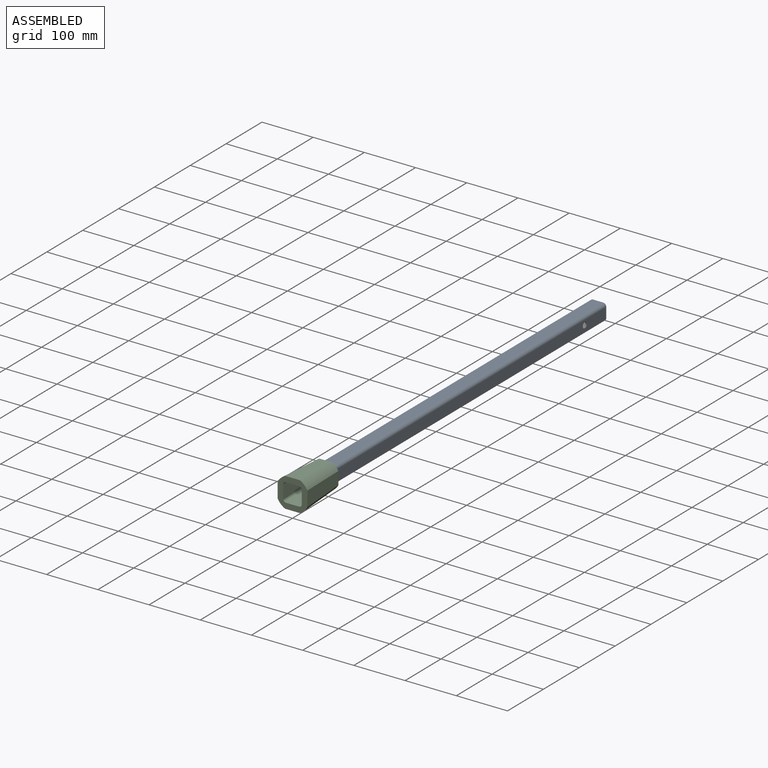
[diagram: assembled view]
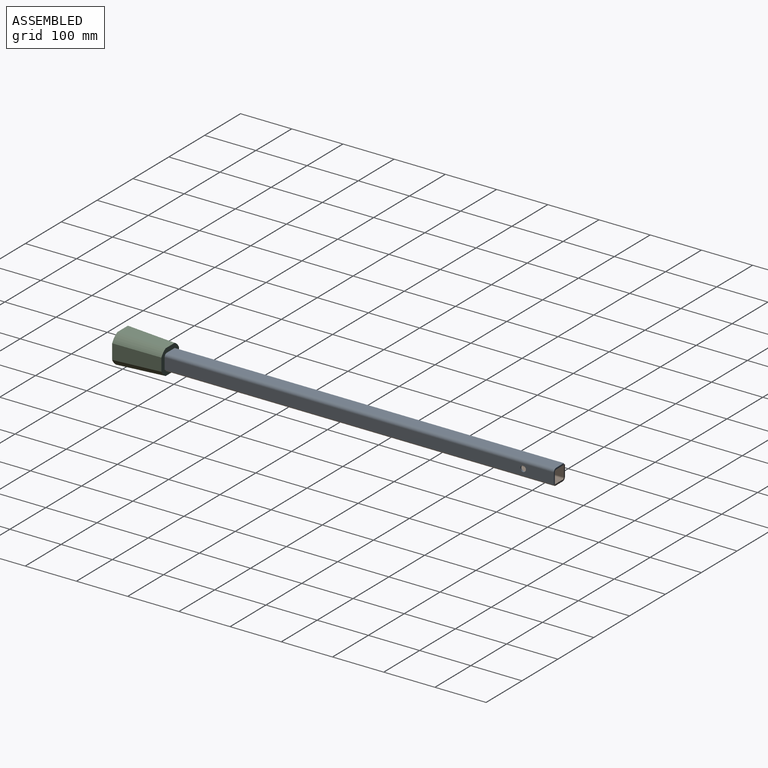
[diagram: assembled view, second angle]
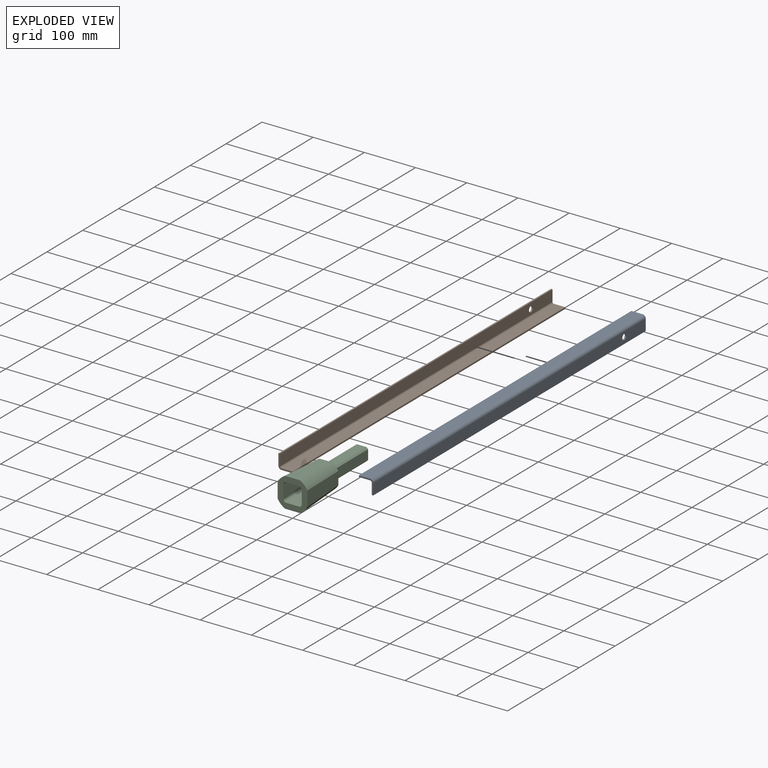
[diagram: exploded view]
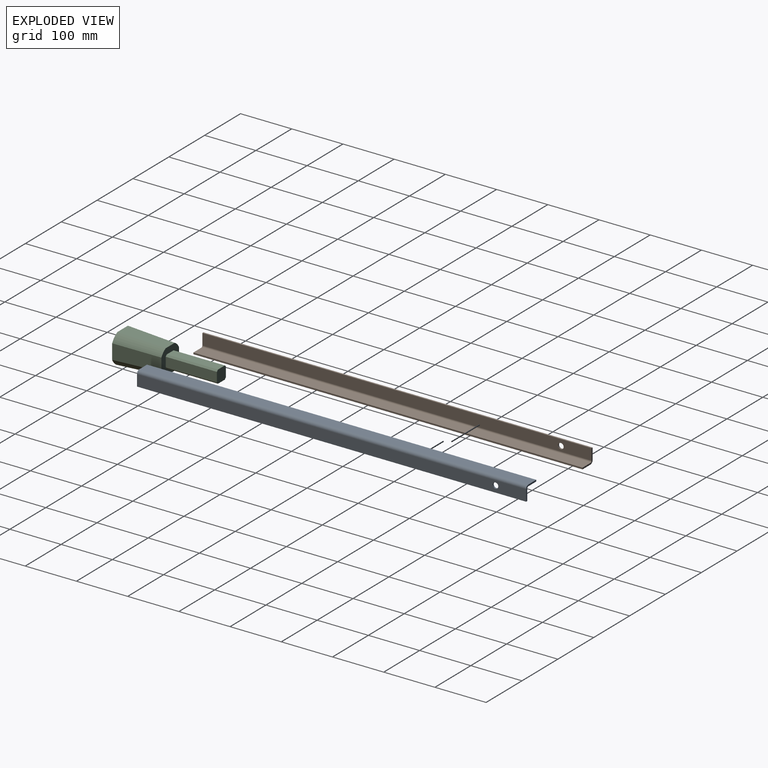
[diagram: exploded view, second angle]
ASSEMBLY  parts=3 mates=6
PART A: 15 faces, bbox 28x760x28 mm
  f0: plane 22x3mm, normal (0,-1,0), area 66mm2, adj f2,f3,f4,f12
  f1: plane 22x3mm, normal (0,1,0), area 66mm2, adj f2,f3,f4,f11
  f2: plane 760x3mm, normal (-1,0,0), area 2280mm2, adj f0,f1,f3,f4
  f3: plane 760x22mm, normal (0,0,1), area 16720mm2, adj f0,f1,f2,f13
  f4: plane 760x22mm, normal (0,0,-1), area 16720mm2, adj f0,f1,f2,f14
  f5: plane 22x3mm, normal (0,-1,0), area 66mm2, adj f6,f9,f10,f12
  f6: plane 760x3mm, normal (0,0,-1), area 2280mm2, adj f5,f7,f9,f10
  f7: plane 22x3mm, normal (0,1,0), area 66mm2, adj f6,f9,f10,f11
  f8: cylinder r=5.5mm len=11mm, axis (1,0,0), area 103.7mm2, adj f9,f10
  f9: plane 760x22mm, normal (1,0,0), area 16625mm2, adj f5,f6,f7,f8,f13
  f10: plane 760x22mm, normal (-1,0,0), area 16625mm2, adj f5,f6,f7,f8,f14
  f11: plane 6x6mm, normal (0,1,0), area 21.2mm2, adj f1,f7,f13,f14
  f12: plane 6x6mm, normal (0,-1,0), area 21.2mm2, adj f0,f5,f13,f14
  f13: cylinder r=6mm len=760mm, axis (0,1,0), area 7162.8mm2, adj f3,f9,f11,f12
  f14: cylinder r=3mm len=760mm, axis (0,1,0), area 3581.4mm2, adj f4,f10,f11,f12
PART B: same geometry as A
PART C: 36 faces, bbox 58.2x193.2x58.2 mm
  f0: plane 49x49mm, normal (0,1,0), area 1566.7mm2, adj f2,f3,f4,f5,f6,f7,f8,f9
  f1: plane 58.21x58.21mm, normal (0,-1,0), area 1766.8mm2, adj f2,f3,f4,f5,f6,f7,f8,f9
  f2: bspline ~93x16.51mm, area 1763.7mm2, adj f0,f1,f3,f9
  f3: plane 93x29.34mm, normal (1,0.05,0), area 2529mm2, adj f0,f1,f2,f4
  f4: bspline ~93x16.51mm, area 1763.7mm2, adj f0,f1,f3,f5
  f5: plane 93x29.34mm, normal (0,0.05,-1), area 2529mm2, adj f0,f1,f4,f6
  f6: bspline ~93x16.51mm, area 1763.7mm2, adj f0,f1,f5,f7
  f7: plane 93x29.34mm, normal (-1,0.05,0), area 2529mm2, adj f0,f1,f6,f8
  f8: bspline ~93x16.51mm, area 1763.7mm2, adj f0,f1,f7,f9
  f9: plane 93x29.34mm, normal (0,0.05,1), area 2529mm2, adj f0,f1,f2,f8
  f10: plane 20.36x20.36mm, normal (0,-1,0), area 411.2mm2, adj f24,f25,f26,f27,f28,f29,f30,f31
  f11: bspline ~77.19x9.82mm, area 608.1mm2, adj f1,f12,f18,f30
  f12: plane 77.19x26mm, normal (-1,-0.06,0), area 1637.7mm2, adj f1,f11,f13,f28
  f13: bspline ~80x31.37mm, area 608.1mm2, adj f1,f12,f14,f26
  f14: plane 77.19x26mm, normal (0,-0.06,1), area 1637.7mm2, adj f1,f13,f15,f24
  f15: bspline ~80x31.37mm, area 608.1mm2, adj f1,f14,f16,f25
  f16: plane 77.19x26mm, normal (1,-0.06,0), area 1637.7mm2, adj f1,f15,f17,f27
  f17: bspline ~80x31.37mm, area 608.1mm2, adj f1,f16,f18,f29
  f18: plane 77.19x26mm, normal (0,-0.06,-1), area 1637.7mm2, adj f1,f11,f17,f31
  f19: plane 100x19mm, normal (1,0,0), area 1900mm2, adj f0,f23,f32,f33
  f20: plane 100x19mm, normal (0,0,1), area 1900mm2, adj f0,f23,f33,f34
  f21: plane 100x19mm, normal (-1,0,0), area 1900mm2, adj f0,f23,f34,f35
  f22: plane 100x19mm, normal (0,0,-1), area 1900mm2, adj f0,f23,f32,f35
  f23: plane 25x25mm, normal (0,1,0), area 607mm2, adj f19,f20,f21,f22,f32,f33,f34,f35
  f24: cylinder r=3mm len=16.35mm, axis (-1,0,0), area 74mm2, adj f10,f14,f25,f26
  f25: bspline ~5.1x5.08mm, area 27.1mm2, adj f10,f15,f24,f27
  f26: bspline ~5.1x5.08mm, area 27.1mm2, adj f10,f13,f24,f28
  f27: cylinder r=3mm len=16.35mm, axis (0,0,-1), area 74mm2, adj f10,f16,f25,f29
  f28: cylinder r=3mm len=16.35mm, axis (0,0,-1), area 74mm2, adj f10,f12,f26,f30
  f29: bspline ~5.1x5.08mm, area 27.1mm2, adj f10,f17,f27,f31
  f30: bspline ~5.1x5.08mm, area 27.1mm2, adj f10,f11,f28,f31
  f31: cylinder r=3mm len=16.35mm, axis (-1,0,0), area 74mm2, adj f10,f18,f29,f30
  f32: plane 100x3mm, normal (0.71,0,-0.71), area 424.3mm2, adj f0,f19,f22,f23
  f33: plane 100x3mm, normal (0.71,0,0.71), area 424.3mm2, adj f0,f19,f20,f23
  f34: plane 100x3mm, normal (-0.71,0,0.71), area 424.3mm2, adj f0,f20,f21,f23
  f35: plane 100x3mm, normal (-0.71,0,-0.71), area 424.3mm2, adj f0,f21,f22,f23
PLACE A t=(0,93,0)mm
PLACE B rot(axis=(0,-1,0),180deg) t=(0,93,0)mm
PLACE C at identity fixed
MATE planar B.f10 <-> C.f21  axis (1,0,0) through (-12.5,471.17,1.51)mm
MATE planar B.f4 <-> C.f22  axis (0,0,1) through (1.5,473,-12.5)mm
MATE planar C.f19 <-> A.f10  axis (1,0,0) through (12.5,143,0)mm
MATE planar B.f5 <-> C.f0  axis (0,-1,0) through (-14,93,1.5)mm
MATE planar A.f0 <-> C.f0  axis (0,-1,0) through (-1.5,93,14)mm
MATE planar A.f4 <-> C.f20  axis (0,0,-1) through (-1.5,473,12.5)mm
